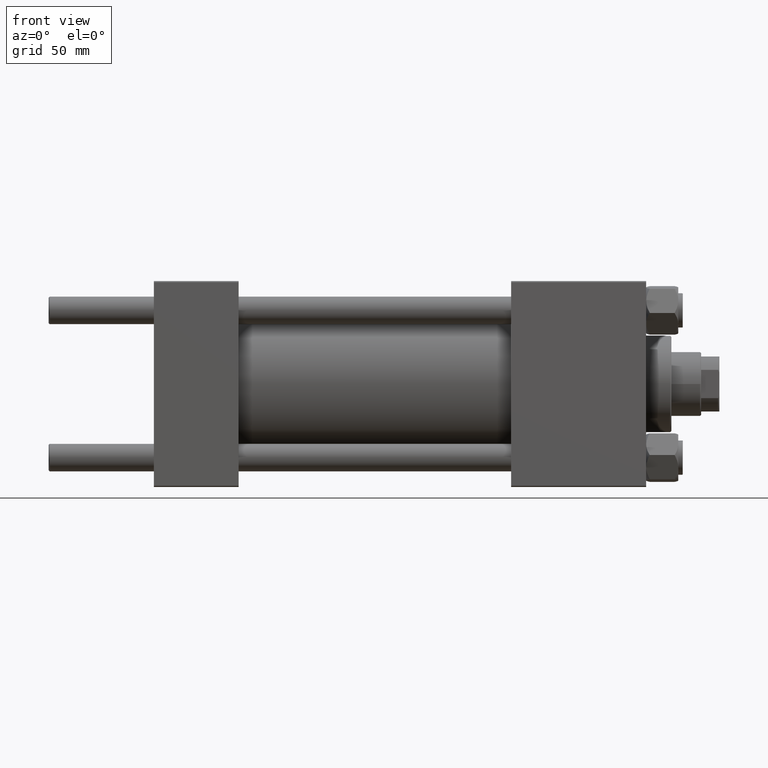
[diagram: clean part render]
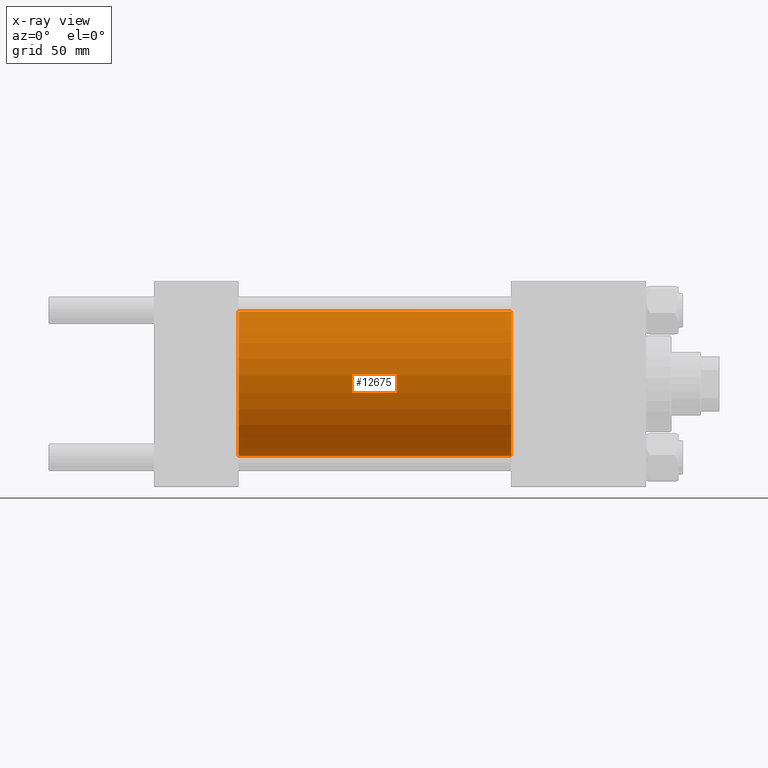
[diagram: x-ray — body ghosted, one internal face saturated and labeled with its STEP entity id]
A machine part, front view, then the same camera in x-ray: the body is ghosted and one INTERNAL B-rep face — a face not visible from any outside direction — is saturated and labeled: STEP entity #12675.
In plain terms, the highlighted cylindrical surface (partial cylindrical patch) has radius 31.5 mm, axis along (-1, -0, -0).
Its self-contained STEP definition (entity closure, byte-faithful):
#1698 = VERTEX_POINT ( 'NONE', #25850 ) ;
#2305 = CARTESIAN_POINT ( 'NONE',  ( 37.00000000000000000, 0.000000000000000000, 0.000000000000000000 ) ) ;
#2439 = CARTESIAN_POINT ( 'NONE',  ( 37.00000000000000000, 3.857637417314162689E-15, -31.50000000000000000 ) ) ;
#3421 = DIRECTION ( 'NONE',  ( 0.000000000000000000, 0.000000000000000000, -1.000000000000000000 ) ) ;
#3427 = CARTESIAN_POINT ( 'NONE',  ( 156.0000000000000000, 3.857637417314162689E-15, -31.50000000000000000 ) ) ;
#3697 = ORIENTED_EDGE ( 'NONE', *, *, #8720, .T. ) ;
#5497 = AXIS2_PLACEMENT_3D ( 'NONE', #46819, #34681, #15737 ) ;
#8720 = EDGE_CURVE ( 'NONE', #11694, #16587, #44897, .T. ) ;
#10136 = DIRECTION ( 'NONE',  ( 1.000000000000000000, 0.000000000000000000, 0.000000000000000000 ) ) ;
#11694 = VERTEX_POINT ( 'NONE', #3427 ) ;
#12098 = ORIENTED_EDGE ( 'NONE', *, *, #31725, .F. ) ;
#12368 = EDGE_LOOP ( 'NONE', ( #23483, #3697, #13897, #12098 ) ) ;
#12675 = ADVANCED_FACE ( 'NONE', ( #19781 ), #45123, .F. ) ;
#13897 = ORIENTED_EDGE ( 'NONE', *, *, #15252, .F. ) ;
#14889 = EDGE_CURVE ( 'NONE', #45962, #11694, #25076, .T. ) ;
#15252 = EDGE_CURVE ( 'NONE', #1698, #16587, #19443, .T. ) ;
#15737 = DIRECTION ( 'NONE',  ( 0.000000000000000000, 0.000000000000000000, 1.000000000000000000 ) ) ;
#16587 = VERTEX_POINT ( 'NONE', #2439 ) ;
#19443 = CIRCLE ( 'NONE', #28319, 31.50000000000000000 ) ;
#19781 = FACE_OUTER_BOUND ( 'NONE', #12368, .T. ) ;
#22155 = DIRECTION ( 'NONE',  ( -1.000000000000000000, -0.000000000000000000, -0.000000000000000000 ) ) ;
#23483 = ORIENTED_EDGE ( 'NONE', *, *, #14889, .T. ) ;
#25076 = CIRCLE ( 'NONE', #45262, 31.50000000000000000 ) ;
#25208 = CARTESIAN_POINT ( 'NONE',  ( 156.0000000000000000, 0.000000000000000000, 31.50000000000000000 ) ) ;
#25581 = DIRECTION ( 'NONE',  ( 0.000000000000000000, 0.000000000000000000, -1.000000000000000000 ) ) ;
#25646 = LINE ( 'NONE', #38258, #36588 ) ;
#25850 = CARTESIAN_POINT ( 'NONE',  ( 37.00000000000000000, 0.000000000000000000, 31.50000000000000000 ) ) ;
#28319 = AXIS2_PLACEMENT_3D ( 'NONE', #2305, #10136, #25581 ) ;
#29629 = VECTOR ( 'NONE', #22155, 1000.000000000000000 ) ;
#31218 = CARTESIAN_POINT ( 'NONE',  ( 156.0000000000000000, 0.000000000000000000, 0.000000000000000000 ) ) ;
#31725 = EDGE_CURVE ( 'NONE', #45962, #1698, #25646, .T. ) ;
#34681 = DIRECTION ( 'NONE',  ( -1.000000000000000000, -0.000000000000000000, -0.000000000000000000 ) ) ;
#35259 = DIRECTION ( 'NONE',  ( 1.000000000000000000, 0.000000000000000000, 0.000000000000000000 ) ) ;
#36588 = VECTOR ( 'NONE', #45342, 1000.000000000000000 ) ;
#38258 = CARTESIAN_POINT ( 'NONE',  ( 156.0000000000000000, 0.000000000000000000, 31.50000000000000000 ) ) ;
#44897 = LINE ( 'NONE', #45396, #29629 ) ;
#45123 = CYLINDRICAL_SURFACE ( 'NONE', #5497, 31.50000000000000000 ) ;
#45262 = AXIS2_PLACEMENT_3D ( 'NONE', #31218, #35259, #3421 ) ;
#45342 = DIRECTION ( 'NONE',  ( -1.000000000000000000, -0.000000000000000000, -0.000000000000000000 ) ) ;
#45396 = CARTESIAN_POINT ( 'NONE',  ( 156.0000000000000000, 3.857637417314162689E-15, -31.50000000000000000 ) ) ;
#45962 = VERTEX_POINT ( 'NONE', #25208 ) ;
#46819 = CARTESIAN_POINT ( 'NONE',  ( 156.0000000000000000, 0.000000000000000000, 0.000000000000000000 ) ) ;